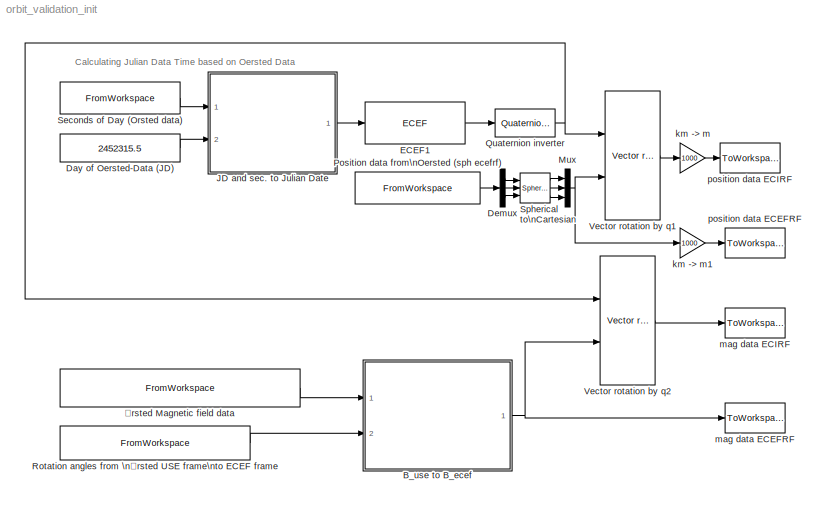
MODEL orbit_validation_init
KIND model
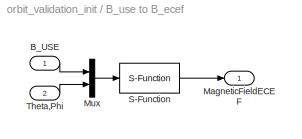
BLOCK [SubSystem] B_use to B_ecef
  MinAlgLoopOccurrences = off
  Ports = [2, 1]
  RTWSystemCode = Auto
  TreatAsAtomicUnit = off
BLOCK [Inport] B_use to B_ecef/B_USE
  IconDisplay = Port number
  LatchInput = off
  Port = 1
BLOCK [Outport] B_use to B_ecef/MagneticFieldECEF
  BusOutputAsStruct = off
  IconDisplay = Port number
BLOCK [Mux] B_use to B_ecef/Mux
  DisplayOption = bar
  Inputs = 2
  Ports = [2, 1]
BLOCK [S-Function] B_use to B_ecef/S-Function
  FunctionName = ecef_use
  Ports = [1, 1]
BLOCK [Inport] B_use to B_ecef/Theta,Phi
  IconDisplay = Port number
  LatchInput = off
  Port = 2
BLOCK [Constant] Day of Oersted-Data  (JD)
  Value = 2452315.5
BLOCK [Demux] Demux
  Outputs = 3
  Ports = [1, 3]
BLOCK [Reference] ECEF1  REF=ephemeris_lib/Ephemeris/ECEF
  Ports = [1, 1]
  ShowPortLabels = on
  SourceBlock = ephemeris_lib/Ephemeris/ECEF
  SourceType = SubSystem
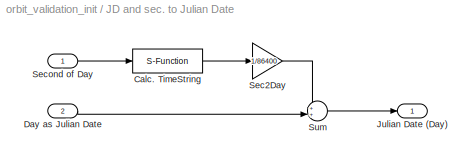
BLOCK [SubSystem] JD and sec. to Julian Date
  MinAlgLoopOccurrences = off
  Ports = [2, 1]
  RTWSystemCode = Auto
  TreatAsAtomicUnit = off
BLOCK [S-Function] JD and sec. to Julian Date/Calc. TimeString
  FunctionName = Qcontinuum
  Ports = [1, 1]
BLOCK [Inport] JD and sec. to Julian Date/Day as Julian Date
  IconDisplay = Port number
  LatchInput = off
  Port = 2
BLOCK [Outport] JD and sec. to Julian Date/Julian Date (Day)
  BusOutputAsStruct = off
  IconDisplay = Port number
BLOCK [Gain] JD and sec. to Julian Date/Sec2Day
  Gain = 1/86400
BLOCK [Inport] JD and sec. to Julian Date/Second of Day
  IconDisplay = Port number
  LatchInput = off
  Port = 1
BLOCK [Sum] JD and sec. to Julian Date/Sum
  IconShape = round
  Inputs = ++|
  Ports = [2, 1]
BLOCK [Mux] Mux
  DisplayOption = bar
  Inputs = 3
  Ports = [3, 1]
BLOCK [FromWorkspace] Position data from\nOersted (sph ecefrf)
  SampleTime = 1
  VariableName = [oersted_data.time.sample_number OEdata_temp(:,1) (OEdata_temp(:,3))*pi/180 OEdata_temp(:,2)*pi/180]
BLOCK [Reference] Quaternion inverter  REF=components_lib/Math utilities/Quaternion operations/Quaternion inverter  (lib defined in mdl_419550584dda)
  Ports = [1, 1]
  ShowPortLabels = on
  SourceBlock = components_lib/Math utilities/Quaternion operations/Quaternion inverter
  SourceType = SubSystem
BLOCK [FromWorkspace] Rotation angles from \nØrsted USE frame\nto ECEF frame
  SampleTime = 1
  VariableName = [oersted_data.time.sample_number OEdata_temp(:,2) OEdata_temp(:,3)]
BLOCK [FromWorkspace] Seconds of Day (Orsted data)
  SampleTime = 1
  VariableName = [oersted_data.time.sample_number oersted_data.time.second oersted_data.time.day]
BLOCK [Reference] Spherical to\nCartesian  REF=simulink_extras/Transformations/Spherical to\nCartesian
  Ports = [3, 3]
  ShowPortLabels = on
  SourceBlock = simulink_extras/Transformations/Spherical to\nCartesian
  SourceType = Sph2Cart
BLOCK [Reference] Vector rotation by q1  REF=components_lib/Math utilities/Vector operations/Vector rotation by q  (lib defined in mdl_419550584dda)
  Ports = [2, 1]
  ShowPortLabels = on
  SourceBlock = components_lib/Math utilities/Vector operations/Vector rotation by q
  SourceType = SubSystem
BLOCK [Reference] Vector rotation by q2  REF=components_lib/Math utilities/Vector operations/Vector rotation by q  (lib defined in mdl_419550584dda)
  Ports = [2, 1]
  ShowPortLabels = on
  SourceBlock = components_lib/Math utilities/Vector operations/Vector rotation by q
  SourceType = SubSystem
BLOCK [Gain] km -> m
  Gain = 1000
BLOCK [Gain] km -> m1
  Gain = 1000
BLOCK [ToWorkspace] mag data ECEFRF
  MaxDataPoints = inf
  SampleTime = -1
  SaveFormat = Array
  VariableName = OEdata_temp4
BLOCK [ToWorkspace] mag data ECIRF
  MaxDataPoints = inf
  SampleTime = -1
  SaveFormat = Array
  VariableName = OEdata_temp5
BLOCK [ToWorkspace] position data ECEFRF
  MaxDataPoints = inf
  SampleTime = -1
  SaveFormat = Array
  VariableName = OEdata_temp2
BLOCK [ToWorkspace] position data ECIRF
  MaxDataPoints = inf
  SampleTime = -1
  SaveFormat = Array
  VariableName = OEdata_temp3
BLOCK [FromWorkspace] Ørsted Magnetic field data 
  SampleTime = 1
  VariableName = [oersted_data.time.sample_number OEdata_temp(:,4) OEdata_temp(:,5) OEdata_temp(:,6)]
ANNOTATION (root): Calculating Julian Data Time based on Oersted Data
LINE B_use to B_ecef/B_USE:1 -> B_use to B_ecef/Mux:1
LINE B_use to B_ecef/Mux:1 -> B_use to B_ecef/S-Function:1
LINE B_use to B_ecef/S-Function:1 -> B_use to B_ecef/MagneticFieldECEF:1
LINE B_use to B_ecef/Theta,Phi:1 -> B_use to B_ecef/Mux:2
NET B_use to B_ecef:1 -> Vector rotation by q2:2, mag data ECEFRF:1
LINE Day of Oersted-Data  (JD):1 -> JD and sec. to Julian Date:2
LINE Demux:1 -> Spherical to\nCartesian:1
LINE Demux:2 -> Spherical to\nCartesian:2
LINE Demux:3 -> Spherical to\nCartesian:3
LINE ECEF1:1 -> Quaternion inverter:1
LINE JD and sec. to Julian Date/Calc. TimeString:1 -> JD and sec. to Julian Date/Sec2Day:1
LINE JD and sec. to Julian Date/Day as Julian Date:1 -> JD and sec. to Julian Date/Sum:2
LINE JD and sec. to Julian Date/Sec2Day:1 -> JD and sec. to Julian Date/Sum:1
LINE JD and sec. to Julian Date/Second of Day:1 -> JD and sec. to Julian Date/Calc. TimeString:1
LINE JD and sec. to Julian Date/Sum:1 -> JD and sec. to Julian Date/Julian Date (Day):1
LINE JD and sec. to Julian Date:1 -> ECEF1:1
NET Mux:1 -> Vector rotation by q1:2, km -> m1:1
LINE Position data from\nOersted (sph ecefrf):1 -> Demux:1
NET Quaternion inverter:1 -> Vector rotation by q1:1, Vector rotation by q2:1
LINE Rotation angles from \nØrsted USE frame\nto ECEF frame:1 -> B_use to B_ecef:2
LINE Seconds of Day (Orsted data):1 -> JD and sec. to Julian Date:1
LINE Spherical to\nCartesian:1 -> Mux:1
LINE Spherical to\nCartesian:2 -> Mux:2
LINE Spherical to\nCartesian:3 -> Mux:3
LINE Vector rotation by q1:1 -> km -> m:1
LINE Vector rotation by q2:1 -> mag data ECIRF:1
LINE km -> m1:1 -> position data ECEFRF:1
LINE km -> m:1 -> position data ECIRF:1
LINE Ørsted Magnetic field data :1 -> B_use to B_ecef:1
note: NET lines group one-source signal fan-out (src -> all destinations, sorted); 1:1 wires keep LINE
